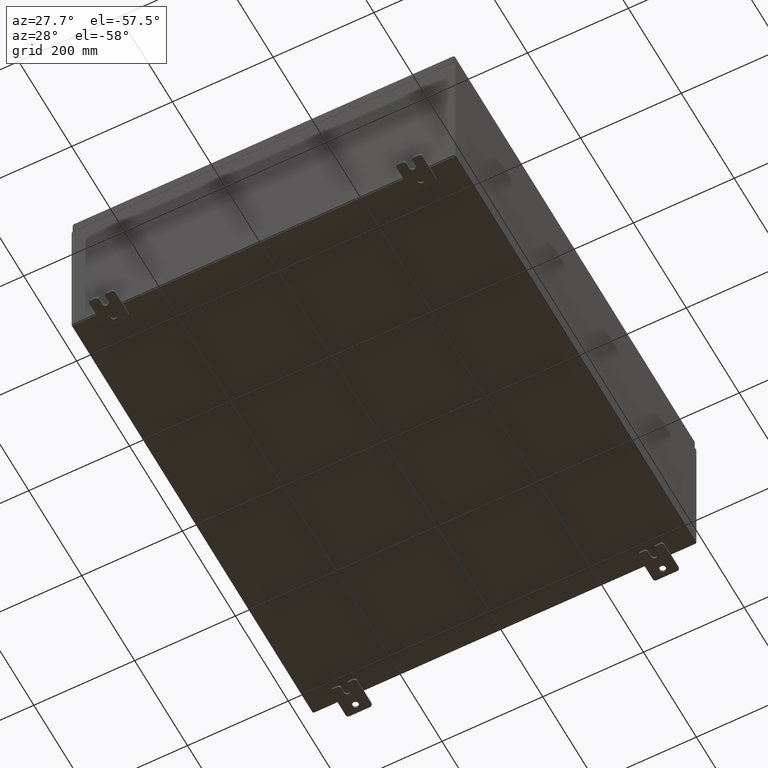
[diagram: clean part render]
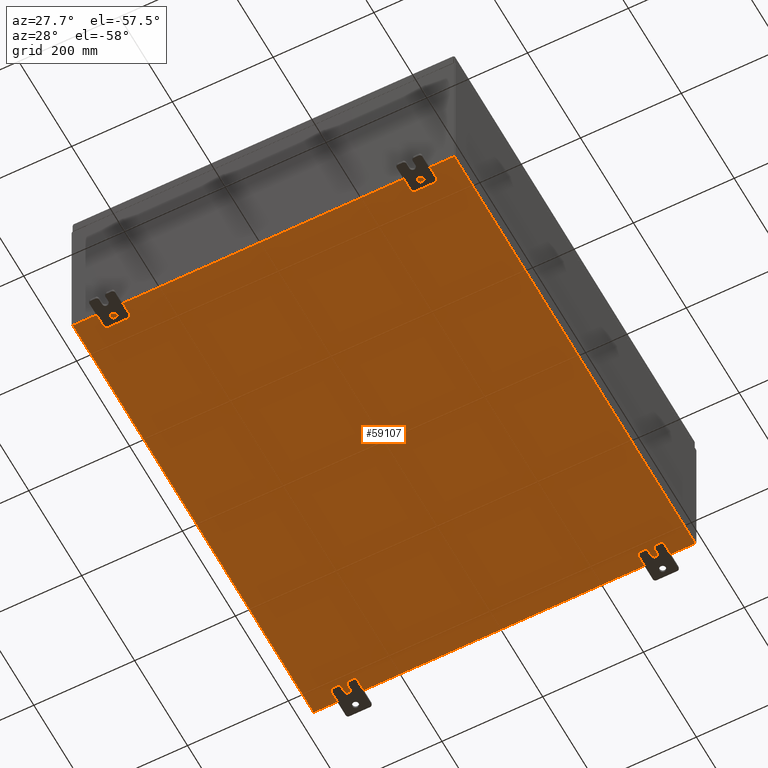
[diagram: same view with one face highlighted and labeled with its STEP entity id]
A machine part, auxiliary view. The second image highlights one B-rep face of the part: STEP entity #59107.
In plain terms, the highlighted planar face has unit normal (0, 0, -1).
Its self-contained STEP definition (entity closure, byte-faithful):
#150 = ORIENTED_EDGE ( 'NONE', *, *, #28529, .F. ) ;
#3719 = VECTOR ( 'NONE', #33745, 39.37007874015748100 ) ;
#9958 = VECTOR ( 'NONE', #50842, 39.37007874015748100 ) ;
#12599 = AXIS2_PLACEMENT_3D ( 'NONE', #44047, #33588, #54312 ) ;
#13841 = ORIENTED_EDGE ( 'NONE', *, *, #45723, .T. ) ;
#16392 = VECTOR ( 'NONE', #20991, 39.37007874015748100 ) ;
#17235 = LINE ( 'NONE', #48465, #3719 ) ;
#20756 = EDGE_LOOP ( 'NONE', ( #50075, #32485, #150, #13841 ) ) ;
#20991 = DIRECTION ( 'NONE',  ( -0.0000000000000000000, 1.000000000000000000, -0.0000000000000000000 ) ) ;
#23961 = CARTESIAN_POINT ( 'NONE',  ( 14.91229999999999800, -17.92530000000000000, -0.07470000000000000300 ) ) ;
#24233 = VERTEX_POINT ( 'NONE', #43614 ) ;
#24660 = CARTESIAN_POINT ( 'NONE',  ( 14.91229999999999800, 17.92530000000000000, -0.07470000000000251400 ) ) ;
#25801 = VERTEX_POINT ( 'NONE', #48932 ) ;
#27531 = EDGE_CURVE ( 'NONE', #31007, #24233, #43443, .T. ) ;
#28529 = EDGE_CURVE ( 'NONE', #25801, #24233, #37013, .T. ) ;
#31007 = VERTEX_POINT ( 'NONE', #62315 ) ;
#32244 = LINE ( 'NONE', #24660, #57761 ) ;
#32485 = ORIENTED_EDGE ( 'NONE', *, *, #27531, .T. ) ;
#33588 = DIRECTION ( 'NONE',  ( 0.0000000000000000000, 0.0000000000000000000, -1.000000000000000000 ) ) ;
#33745 = DIRECTION ( 'NONE',  ( 1.000000000000000000, 0.0000000000000000000, 0.0000000000000000000 ) ) ;
#35474 = CARTESIAN_POINT ( 'NONE',  ( -15.00000000000000400, 17.92530000000000000, -0.07470000000000000300 ) ) ;
#37013 = LINE ( 'NONE', #35474, #9958 ) ;
#43443 = LINE ( 'NONE', #51521, #16392 ) ;
#43614 = CARTESIAN_POINT ( 'NONE',  ( -14.91230000000000200, 17.92530000000000000, -0.07470000000000000300 ) ) ;
#44047 = CARTESIAN_POINT ( 'NONE',  ( 0.0000000000000000000, 0.0000000000000000000, -0.07470000000000000300 ) ) ;
#45155 = DIRECTION ( 'NONE',  ( -0.0000000000000000000, -1.000000000000000000, 8.208677865577646300E-017 ) ) ;
#45723 = EDGE_CURVE ( 'NONE', #25801, #60899, #32244, .T. ) ;
#48465 = CARTESIAN_POINT ( 'NONE',  ( -15.00000000000000400, -17.92530000000000000, -0.07470000000000000300 ) ) ;
#48932 = CARTESIAN_POINT ( 'NONE',  ( 14.91229999999999800, 17.92530000000000000, -0.07470000000000251400 ) ) ;
#49186 = PLANE ( 'NONE',  #12599 ) ;
#50075 = ORIENTED_EDGE ( 'NONE', *, *, #64577, .F. ) ;
#50842 = DIRECTION ( 'NONE',  ( -1.000000000000000000, -0.0000000000000000000, -0.0000000000000000000 ) ) ;
#51521 = CARTESIAN_POINT ( 'NONE',  ( -14.91230000000000200, -17.92530000000000000, -0.07469999999999994700 ) ) ;
#54312 = DIRECTION ( 'NONE',  ( -1.000000000000000000, 0.0000000000000000000, -0.0000000000000000000 ) ) ;
#56669 = FACE_OUTER_BOUND ( 'NONE', #20756, .T. ) ;
#57761 = VECTOR ( 'NONE', #45155, 39.37007874015748100 ) ;
#59107 = ADVANCED_FACE ( 'NONE', ( #56669 ), #49186, .T. ) ;
#60899 = VERTEX_POINT ( 'NONE', #23961 ) ;
#62315 = CARTESIAN_POINT ( 'NONE',  ( -14.91230000000000200, -17.92530000000000000, -0.07469999999999994700 ) ) ;
#64577 = EDGE_CURVE ( 'NONE', #31007, #60899, #17235, .T. ) ;